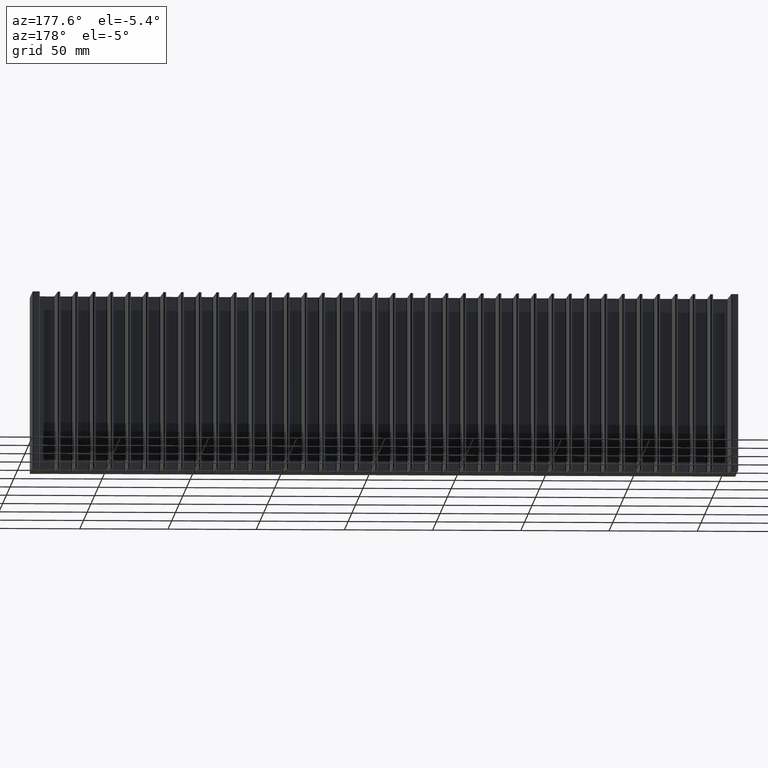
[diagram: clean part render]
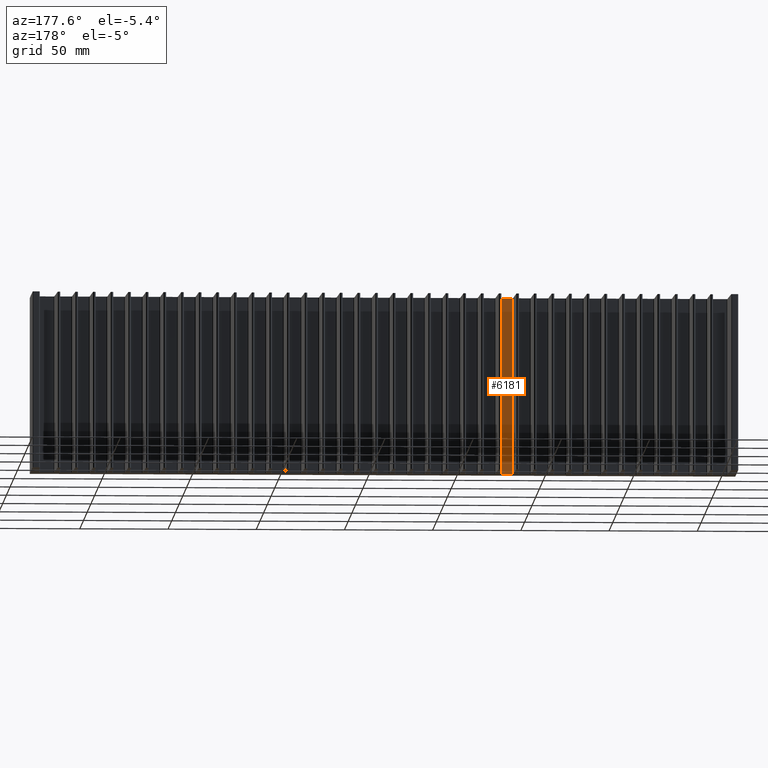
[diagram: same view with one face highlighted and labeled with its STEP entity id]
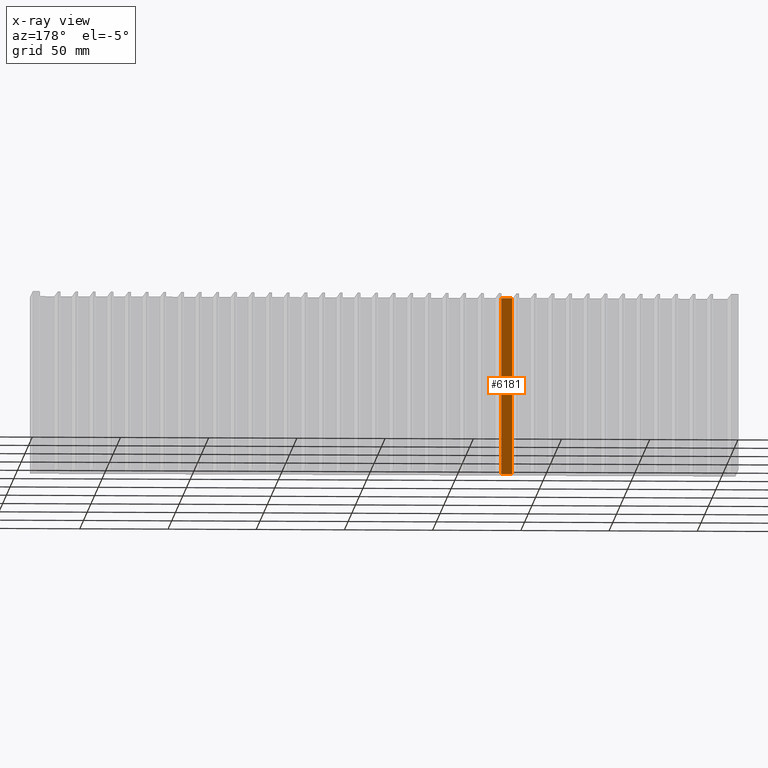
[diagram: x-ray of the same camera — body ghosted, the highlighted face saturated]
A machine part, auxiliary view. The second image highlights one B-rep face of the part: STEP entity #6181.
The next image is the same camera in x-ray: the body ghosted, the highlighted face saturated — about 0% of this face is hidden behind the body in this view.
In plain terms, the highlighted planar face has unit normal (0, -1, 0).
Its self-contained STEP definition (entity closure, byte-faithful):
#267 = LINE ( 'NONE', #2861, #4578 ) ;
#349 = DIRECTION ( 'NONE',  ( -1.000000000000000000, -0.000000000000000000, -0.000000000000000000 ) ) ;
#435 = VECTOR ( 'NONE', #4047, 1000.000000000000000 ) ;
#550 = FACE_OUTER_BOUND ( 'NONE', #7598, .T. ) ;
#641 = VECTOR ( 'NONE', #4430, 1000.000000000000000 ) ;
#674 = DIRECTION ( 'NONE',  ( 0.000000000000000000, -0.000000000000000000, -1.000000000000000000 ) ) ;
#806 = LINE ( 'NONE', #2895, #5935 ) ;
#985 = ORIENTED_EDGE ( 'NONE', *, *, #3739, .T. ) ;
#1400 = LINE ( 'NONE', #4473, #641 ) ;
#1623 = CARTESIAN_POINT ( 'NONE',  ( 166.4120687500318070, 173.5164761658375028, 100.0000000000000000 ) ) ;
#1962 = VERTEX_POINT ( 'NONE', #6520 ) ;
#2213 = EDGE_CURVE ( 'NONE', #4216, #3173, #1400, .T. ) ;
#2356 = EDGE_CURVE ( 'NONE', #4216, #2632, #806, .T. ) ;
#2416 = ORIENTED_EDGE ( 'NONE', *, *, #2213, .T. ) ;
#2535 = ORIENTED_EDGE ( 'NONE', *, *, #2356, .F. ) ;
#2632 = VERTEX_POINT ( 'NONE', #6447 ) ;
#2861 = CARTESIAN_POINT ( 'NONE',  ( 166.4120687500318070, 173.5164761658375028, 0.000000000000000000 ) ) ;
#2895 = CARTESIAN_POINT ( 'NONE',  ( 166.4120687500318070, 173.5164761658375028, 100.0000000000000000 ) ) ;
#3173 = VERTEX_POINT ( 'NONE', #4149 ) ;
#3234 = DIRECTION ( 'NONE',  ( 0.000000000000000000, -1.000000000000000000, 0.000000000000000000 ) ) ;
#3569 = ORIENTED_EDGE ( 'NONE', *, *, #7439, .F. ) ;
#3739 = EDGE_CURVE ( 'NONE', #3173, #1962, #267, .T. ) ;
#4047 = DIRECTION ( 'NONE',  ( -0.000000000000000000, -0.000000000000000000, -1.000000000000000000 ) ) ;
#4149 = CARTESIAN_POINT ( 'NONE',  ( 172.4788390472052981, 173.5164761658375028, 0.000000000000000000 ) ) ;
#4216 = VERTEX_POINT ( 'NONE', #5205 ) ;
#4430 = DIRECTION ( 'NONE',  ( -0.000000000000000000, -0.000000000000000000, -1.000000000000000000 ) ) ;
#4473 = CARTESIAN_POINT ( 'NONE',  ( 172.4788390472052981, 173.5164761658375028, 100.0000000000000000 ) ) ;
#4578 = VECTOR ( 'NONE', #349, 1000.000000000000000 ) ;
#5205 = CARTESIAN_POINT ( 'NONE',  ( 172.4788390472052981, 173.5164761658375028, 100.0000000000000000 ) ) ;
#5935 = VECTOR ( 'NONE', #6675, 1000.000000000000000 ) ;
#6181 = ADVANCED_FACE ( 'NONE', ( #550 ), #8348, .F. ) ;
#6447 = CARTESIAN_POINT ( 'NONE',  ( 166.4120687500318070, 173.5164761658375028, 100.0000000000000000 ) ) ;
#6520 = CARTESIAN_POINT ( 'NONE',  ( 166.4120687500318070, 173.5164761658375028, 0.000000000000000000 ) ) ;
#6675 = DIRECTION ( 'NONE',  ( -1.000000000000000000, -0.000000000000000000, -0.000000000000000000 ) ) ;
#7439 = EDGE_CURVE ( 'NONE', #2632, #1962, #7461, .T. ) ;
#7461 = LINE ( 'NONE', #1623, #435 ) ;
#7598 = EDGE_LOOP ( 'NONE', ( #985, #3569, #2535, #2416 ) ) ;
#7711 = CARTESIAN_POINT ( 'NONE',  ( 166.4120687500318070, 173.5164761658375028, 100.0000000000000000 ) ) ;
#8304 = AXIS2_PLACEMENT_3D ( 'NONE', #7711, #3234, #674 ) ;
#8348 = PLANE ( 'NONE',  #8304 ) ;